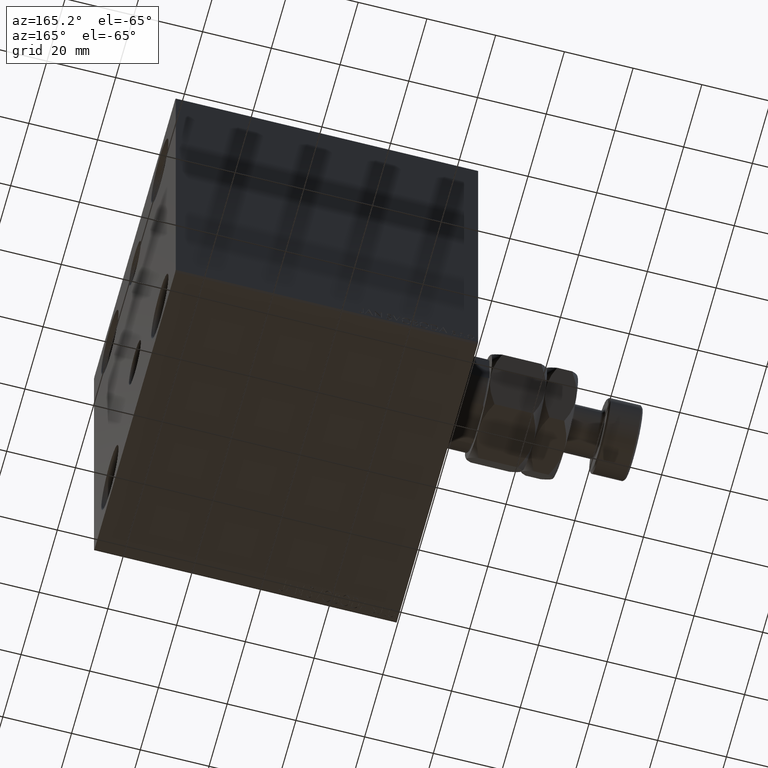
[diagram: clean part render]
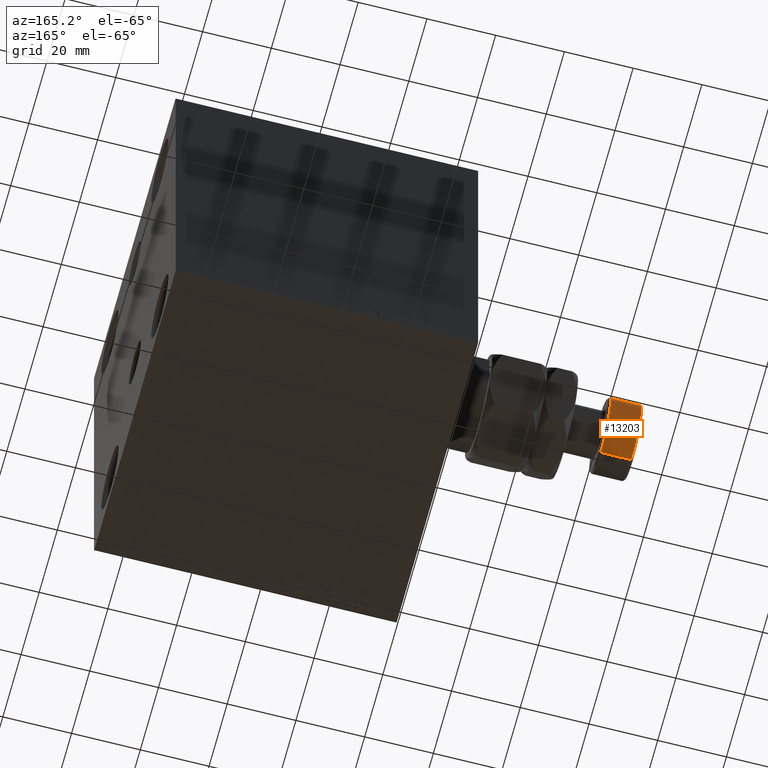
[diagram: same view with one face highlighted and labeled with its STEP entity id]
A machine part, auxiliary view. The second image highlights one B-rep face of the part: STEP entity #13203.
In plain terms, the highlighted cylindrical surface (partial cylindrical patch) has radius 11 mm, axis along (1, -0, -0).
Its self-contained STEP definition (entity closure, byte-faithful):
#949 = AXIS2_PLACEMENT_3D ( 'NONE', #11742, #43917, #8974 ) ;
#2393 = CIRCLE ( 'NONE', #949, 11.00000000000000000 ) ;
#3903 = CARTESIAN_POINT ( 'NONE',  ( 11.00000000000000000, 1.347111479062088405E-15, 45.00000000000000711 ) ) ;
#4361 = EDGE_CURVE ( 'NONE', #44999, #23075, #8900, .T. ) ;
#7581 = DIRECTION ( 'NONE',  ( -0.000000000000000000, -0.000000000000000000, -1.000000000000000000 ) ) ;
#8177 = DIRECTION ( 'NONE',  ( -0.000000000000000000, -0.000000000000000000, -1.000000000000000000 ) ) ;
#8413 = CARTESIAN_POINT ( 'NONE',  ( 0.000000000000000000, 0.000000000000000000, 45.00000000000000711 ) ) ;
#8900 = CIRCLE ( 'NONE', #24309, 11.00000000000000000 ) ;
#8974 = DIRECTION ( 'NONE',  ( 1.000000000000000000, 0.000000000000000000, 0.000000000000000000 ) ) ;
#9052 = EDGE_CURVE ( 'NONE', #23075, #15262, #14266, .T. ) ;
#9135 = LINE ( 'NONE', #33726, #31683 ) ;
#10061 = ORIENTED_EDGE ( 'NONE', *, *, #10277, .F. ) ;
#10277 = EDGE_CURVE ( 'NONE', #44999, #39649, #9135, .T. ) ;
#10805 = DIRECTION ( 'NONE',  ( 1.000000000000000000, 0.000000000000000000, 0.000000000000000000 ) ) ;
#11742 = CARTESIAN_POINT ( 'NONE',  ( 0.000000000000000000, 0.000000000000000000, 35.50000000000001421 ) ) ;
#13203 = ADVANCED_FACE ( 'NONE', ( #18303 ), #39660, .T. ) ;
#14059 = ORIENTED_EDGE ( 'NONE', *, *, #4361, .T. ) ;
#14266 = LINE ( 'NONE', #3903, #37514 ) ;
#14277 = EDGE_CURVE ( 'NONE', #15262, #39649, #2393, .T. ) ;
#15262 = VERTEX_POINT ( 'NONE', #27968 ) ;
#18303 = FACE_OUTER_BOUND ( 'NONE', #27516, .T. ) ;
#20918 = CARTESIAN_POINT ( 'NONE',  ( 0.000000000000000000, 0.000000000000000000, 44.50000000000001421 ) ) ;
#23075 = VERTEX_POINT ( 'NONE', #31065 ) ;
#24309 = AXIS2_PLACEMENT_3D ( 'NONE', #20918, #28047, #10805 ) ;
#26880 = ORIENTED_EDGE ( 'NONE', *, *, #9052, .T. ) ;
#27045 = CARTESIAN_POINT ( 'NONE',  ( -11.00000000000000000, 0.000000000000000000, 35.50000000000001421 ) ) ;
#27516 = EDGE_LOOP ( 'NONE', ( #14059, #26880, #28415, #10061 ) ) ;
#27968 = CARTESIAN_POINT ( 'NONE',  ( 11.00000000000000000, 1.347111479062088405E-15, 35.50000000000001421 ) ) ;
#28047 = DIRECTION ( 'NONE',  ( 0.000000000000000000, 0.000000000000000000, -1.000000000000000000 ) ) ;
#28415 = ORIENTED_EDGE ( 'NONE', *, *, #14277, .T. ) ;
#28876 = DIRECTION ( 'NONE',  ( -1.000000000000000000, 0.000000000000000000, 0.000000000000000000 ) ) ;
#30284 = AXIS2_PLACEMENT_3D ( 'NONE', #8413, #8177, #28876 ) ;
#30287 = DIRECTION ( 'NONE',  ( -0.000000000000000000, -0.000000000000000000, -1.000000000000000000 ) ) ;
#31065 = CARTESIAN_POINT ( 'NONE',  ( 11.00000000000000000, 1.347111479062088405E-15, 44.50000000000001421 ) ) ;
#31683 = VECTOR ( 'NONE', #30287, 1000.000000000000000 ) ;
#33664 = CARTESIAN_POINT ( 'NONE',  ( -11.00000000000000000, 0.000000000000000000, 44.50000000000001421 ) ) ;
#33726 = CARTESIAN_POINT ( 'NONE',  ( -11.00000000000000000, 0.000000000000000000, 45.00000000000000711 ) ) ;
#37514 = VECTOR ( 'NONE', #7581, 1000.000000000000000 ) ;
#39649 = VERTEX_POINT ( 'NONE', #27045 ) ;
#39660 = CYLINDRICAL_SURFACE ( 'NONE', #30284, 11.00000000000000000 ) ;
#43917 = DIRECTION ( 'NONE',  ( -0.000000000000000000, -0.000000000000000000, 1.000000000000000000 ) ) ;
#44999 = VERTEX_POINT ( 'NONE', #33664 ) ;